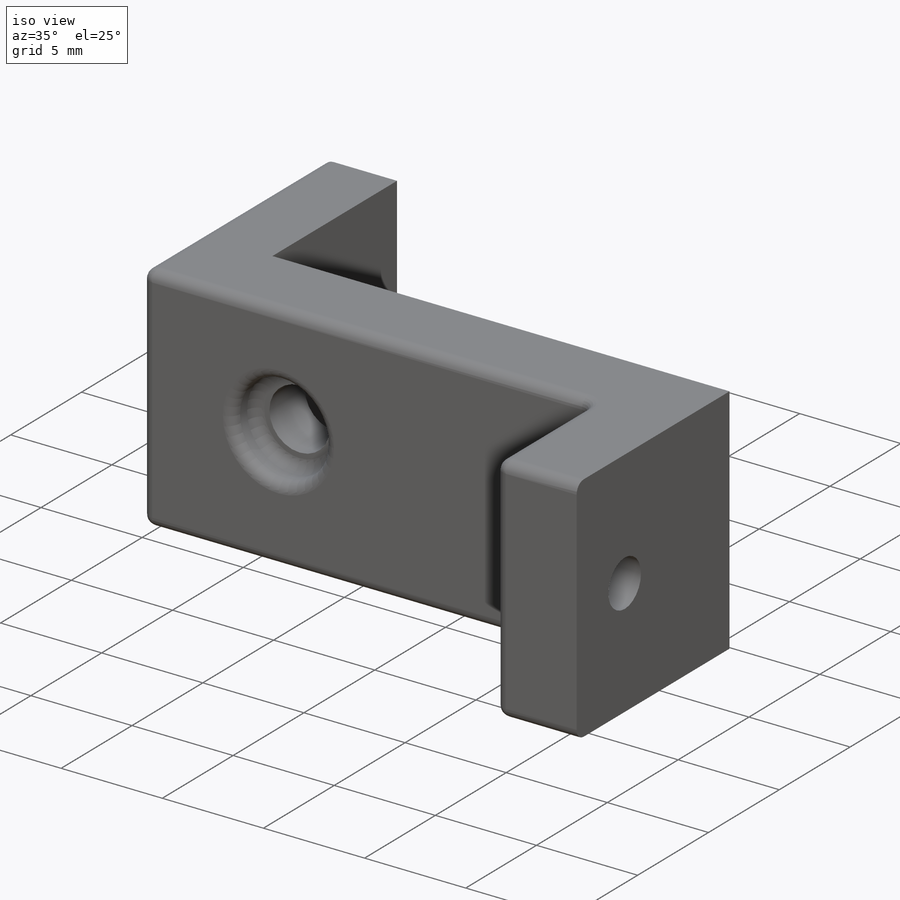
[diagram: iso view]
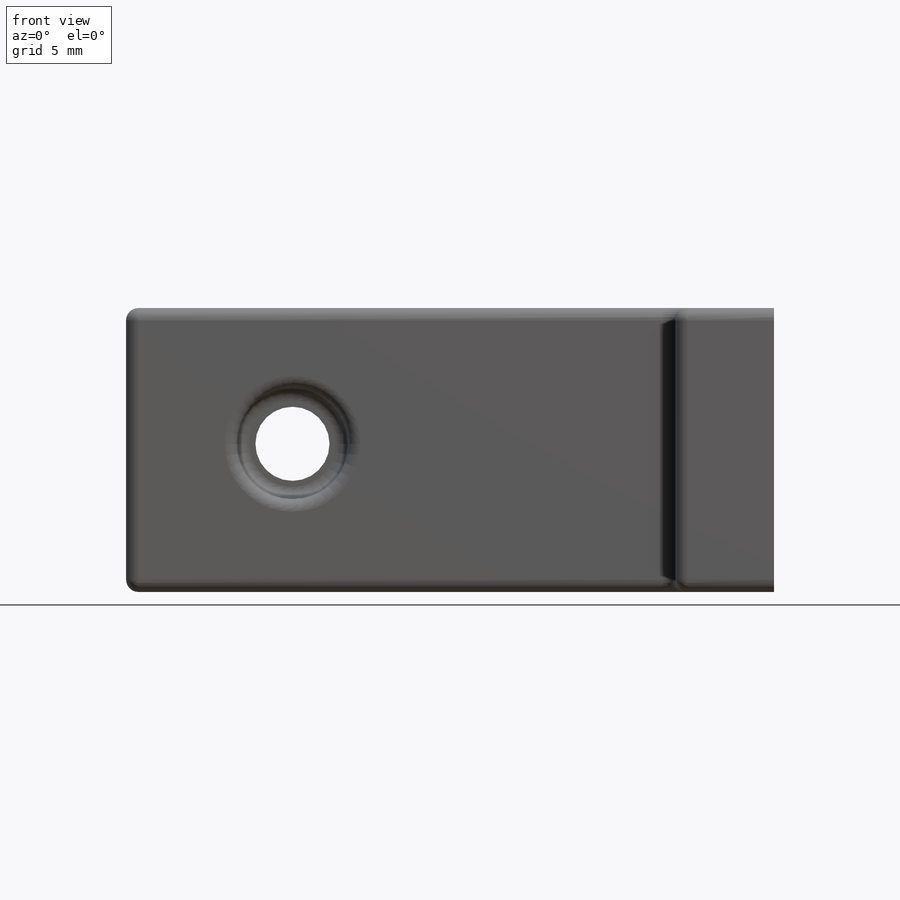
[diagram: front view]
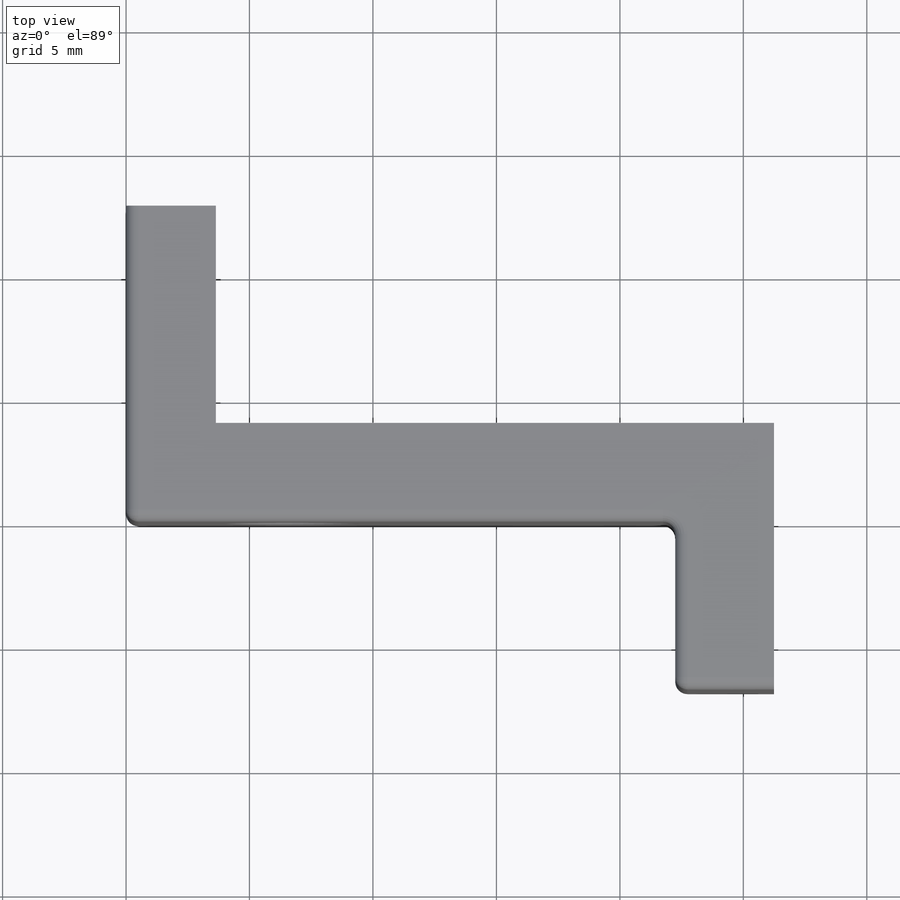
[diagram: top view]
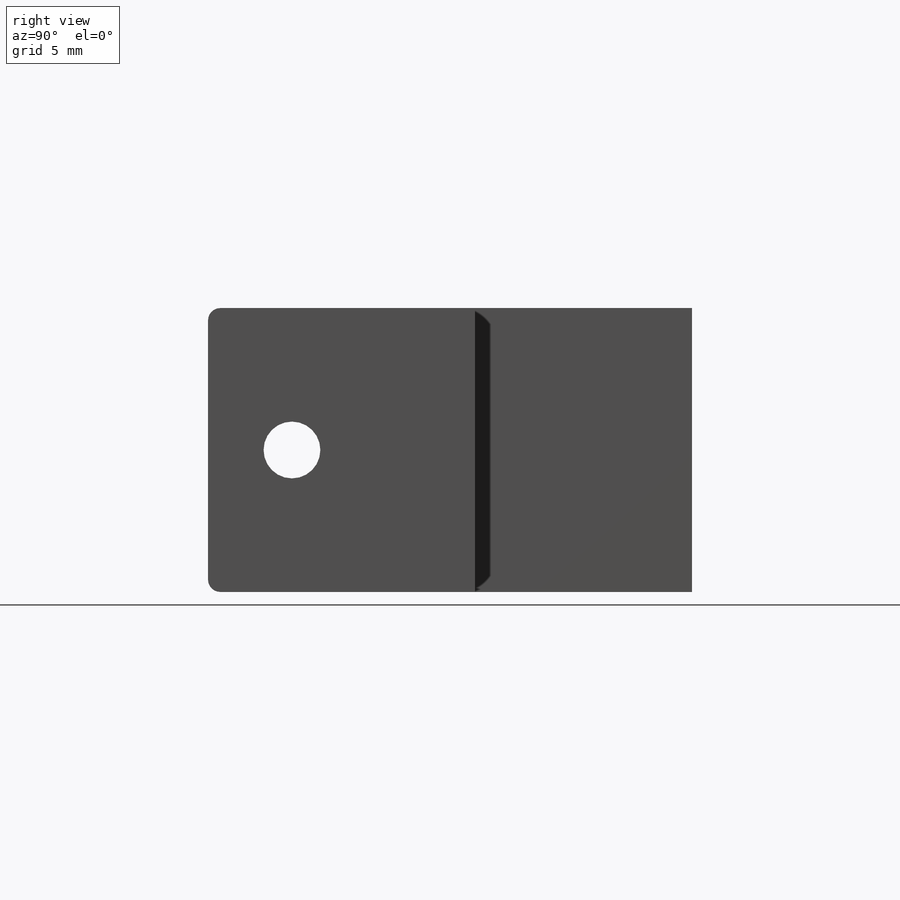
[diagram: right view]
SOLIDWORKS PART (.sldprt)
format: sldprt  version: not decoded by parser v0  size: 408,576 bytes
history: native  units: mm
features: sketch x7, cut_extrude x4, fillet x3, material x1, extrude x1 (+13 scaffold rows collapsed)
feature tree (29):
  scaffold x13  (default folders/planes/origin — collapsed)
  material  "Material <not specified>"
  sketch  "Sketch1"  dims[D1=8.8mm D2=4.0mm D3=6.8mm D4=22.6mm D5=4.0mm]
  extrude  "Boss-Extrude1"  Depth=11.5mm
  sketch  "Sketch2"  dims[D1=0.0mm]
  sketch  "Sketch3"
  sketch  "Sketch4"  dims[c1.D1=~1.388273mm c1.D3=3.0mm c1.D4=3.0mm c2.D1=2.5mm c2.D2=~3.253855mm c3.D2=90.0deg c4.D2=5.5mm c4.D4=18.0mm c4.D1=15.5mm c5.D4=3.1mm]
  cut_extrude  "Cut-Extrude1"  Depth=4.5mm
  sketch  "Sketch5"  dims[D1=~2.201544mm]
  cut_extrude  "Cut-Extrude2"  Depth=1.5mm
  sketch  "Sketch6"  dims[D1=~3.076214mm]
  cut_extrude  "Cut-Extrude3"  Depth=1.75mm
  sketch  "Sketch7"  dims[D1=~1.174029mm]
  cut_extrude  "Cut-Extrude4"  Depth=2.5mm
  fillet  "Fillet4"  Radius=0.5mm
  fillet  "Fillet5"  Radius=0.5mm
  fillet  "Fillet6"  Radius=0.5mm
decode coverage: 14 of 15 modeling features carry decoded parameters
note: ~ marks probable driven/reference dimensions
note: suppression state not decoded; provenance and decode notes live in map.json
